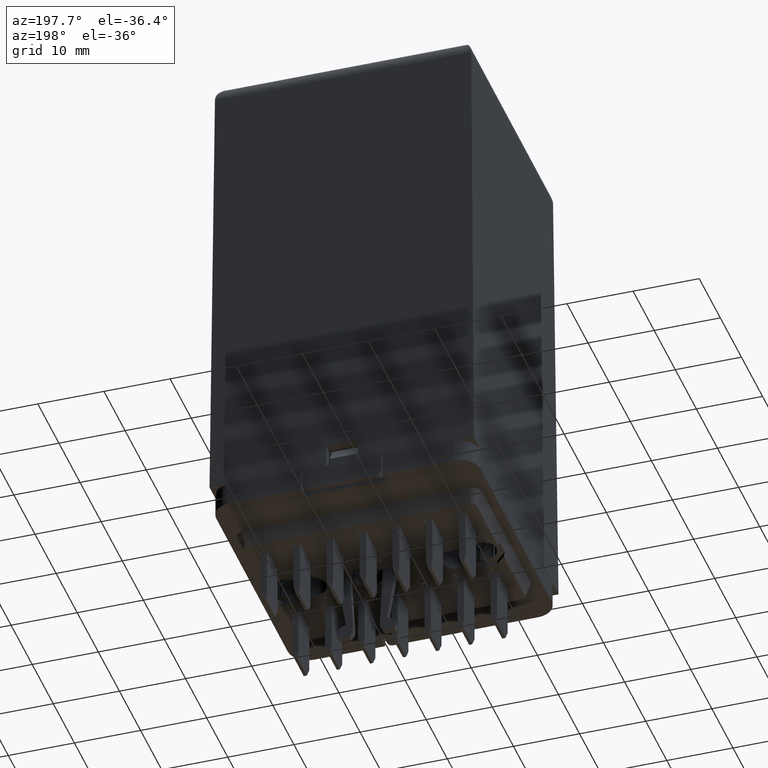
[diagram: clean part render]
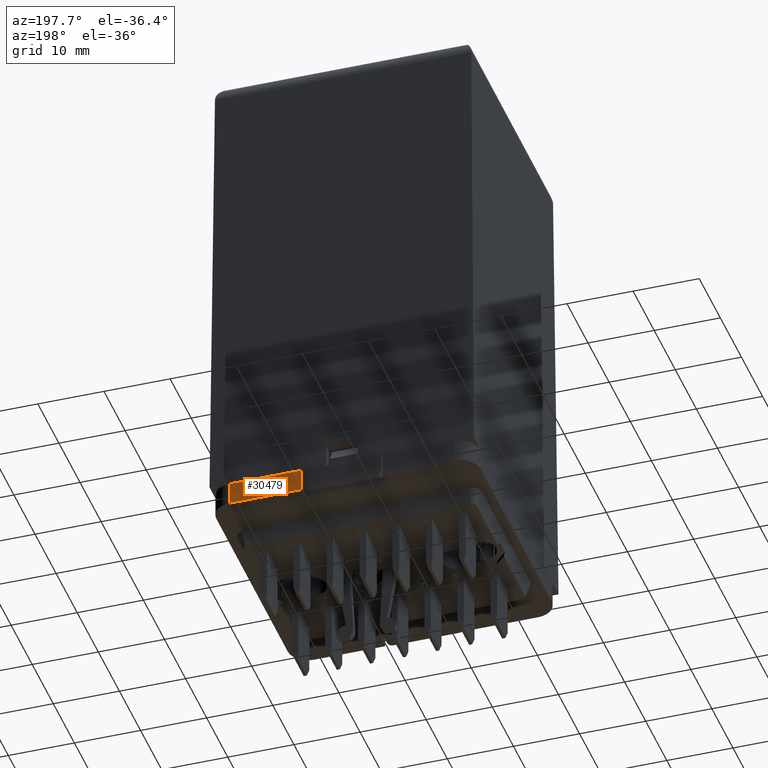
[diagram: same view with one face highlighted and labeled with its STEP entity id]
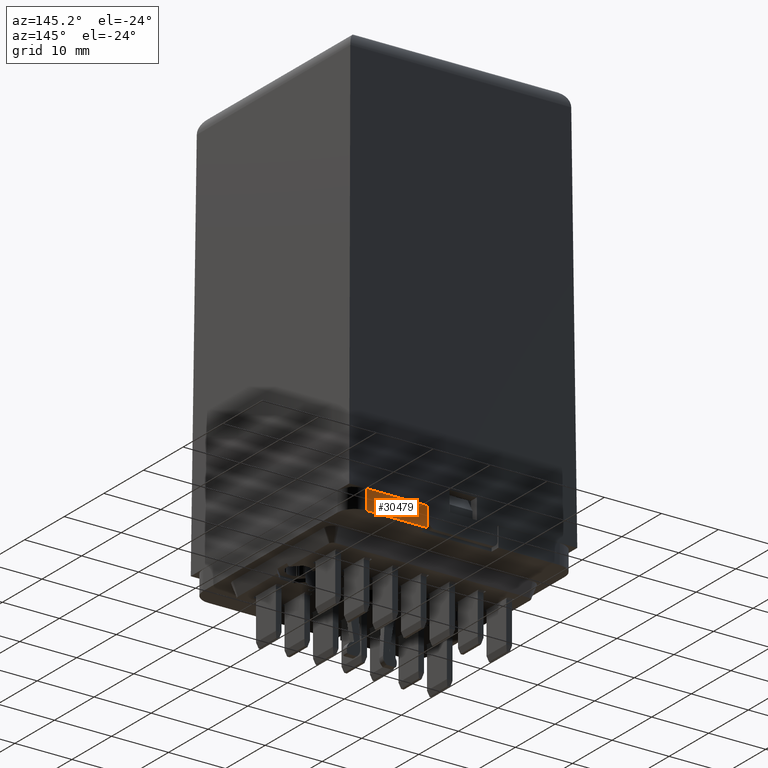
[diagram: same view with one face highlighted and labeled with its STEP entity id]
A machine part, auxiliary view. The second image highlights one B-rep face of the part: STEP entity #30479.
A second angle (auxiliary view) of the same face is appended — the face is thin or edge-on in the first view.
In plain terms, the highlighted planar face has unit normal (0, 1, 0).
Its self-contained STEP definition (entity closure, byte-faithful):
#1057=CARTESIAN_POINT('',(16.950002521962418,19.950000142020784,-4.261275113934969));
#1058=VERTEX_POINT('',#1057);
#1066=CARTESIAN_POINT('',(6.200002521962873,19.950000142020784,-4.261275113935924));
#1067=VERTEX_POINT('',#1066);
#1068=CARTESIAN_POINT('',(6.200002521962874,19.950000142020784,-4.261275113935925));
#1069=DIRECTION('',(1.0,0.0,0.0));
#1070=VECTOR('',#1069,10.749999999999543);
#1071=LINE('',#1068,#1070);
#1072=EDGE_CURVE('',#1067,#1058,#1071,.T.);
#30395=CARTESIAN_POINT('',(16.950002521962414,19.950000142020784,-7.711275113936984));
#30396=VERTEX_POINT('',#30395);
#30404=CARTESIAN_POINT('',(16.950002521962414,19.950000142020784,-7.711275113936984));
#30405=DIRECTION('',(0.0,0.0,1.0));
#30406=VECTOR('',#30405,3.450000000002015);
#30407=LINE('',#30404,#30406);
#30408=EDGE_CURVE('',#30396,#1058,#30407,.T.);
#30429=CARTESIAN_POINT('',(6.200002521962871,19.950000142020784,-7.711275113936979));
#30430=VERTEX_POINT('',#30429);
#30431=CARTESIAN_POINT('',(6.200002521962871,19.950000142020784,-7.711275113936979));
#30432=DIRECTION('',(0.0,0.0,1.0));
#30433=VECTOR('',#30432,3.450000000001054);
#30434=LINE('',#30431,#30433);
#30435=EDGE_CURVE('',#30430,#1067,#30434,.T.);
#30463=CARTESIAN_POINT('',(6.200002521962871,19.950000142020784,-7.711275113936979));
#30464=DIRECTION('',(0.0,1.0,0.0));
#30465=DIRECTION('',(0.0,0.0,-1.0));
#30466=AXIS2_PLACEMENT_3D('',#30463,#30464,#30465);
#30467=PLANE('',#30466);
#30468=ORIENTED_EDGE('',*,*,#1072,.T.);
#30469=ORIENTED_EDGE('',*,*,#30408,.F.);
#30470=CARTESIAN_POINT('',(16.950002521962414,19.950000142020784,-7.711275113936984));
#30471=DIRECTION('',(-1.0,0.0,0.0));
#30472=VECTOR('',#30471,10.749999999999545);
#30473=LINE('',#30470,#30472);
#30474=EDGE_CURVE('',#30396,#30430,#30473,.T.);
#30475=ORIENTED_EDGE('',*,*,#30474,.T.);
#30476=ORIENTED_EDGE('',*,*,#30435,.T.);
#30477=EDGE_LOOP('',(#30468,#30469,#30475,#30476));
#30478=FACE_OUTER_BOUND('',#30477,.T.);
#30479=ADVANCED_FACE('',(#30478),#30467,.T.);